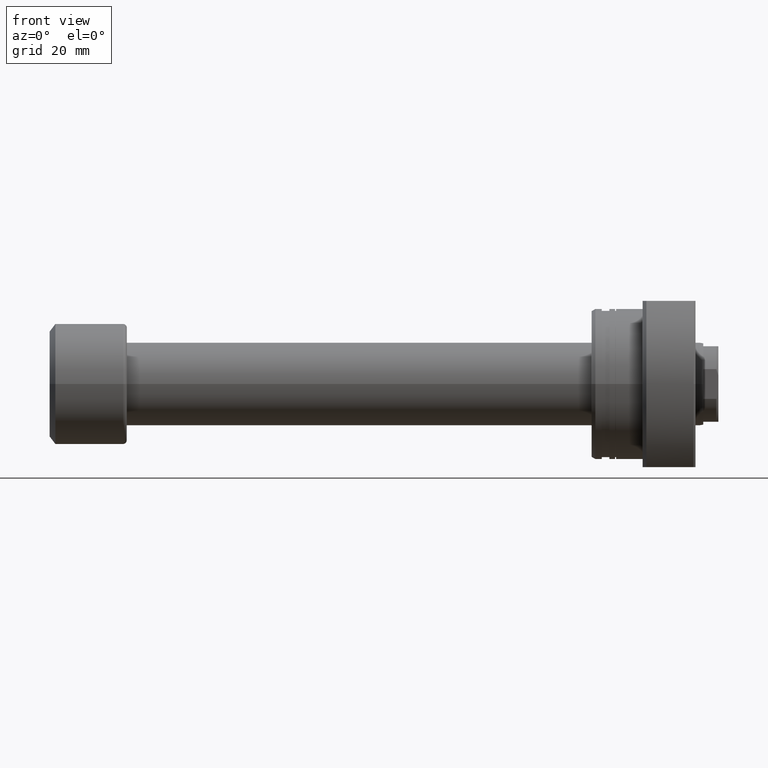
[diagram: clean part render]
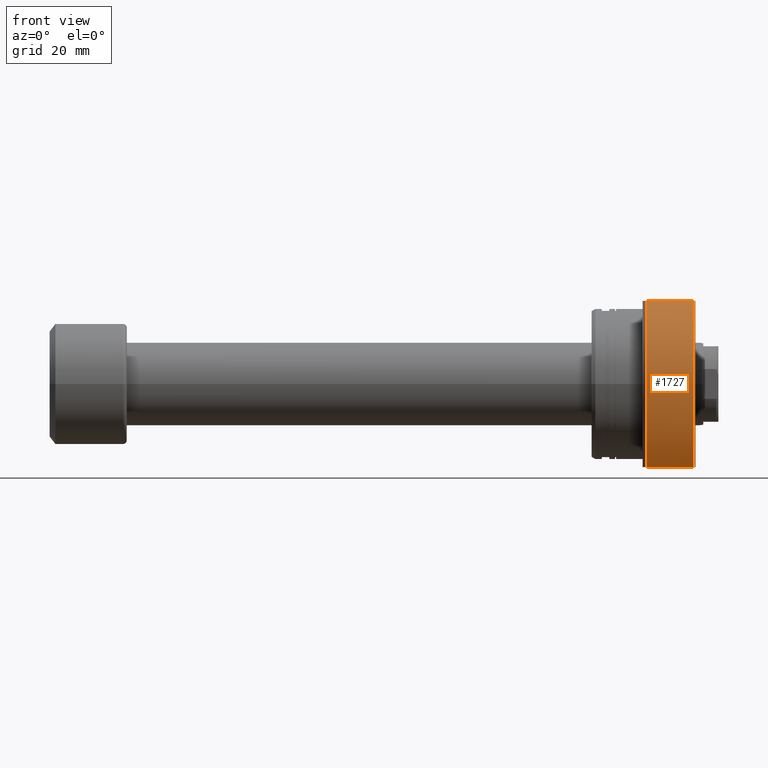
[diagram: same view with one face highlighted and labeled with its STEP entity id]
A machine part, front view. The second image highlights one B-rep face of the part: STEP entity #1727.
In plain terms, the highlighted cylindrical surface (partial cylindrical patch) has radius 32.5 mm, axis along (1, 0, 0).
Its self-contained STEP definition (entity closure, byte-faithful):
#6 = CARTESIAN_POINT ( 'NONE',  ( 27.00000000000008527, 3.607141481124941789E-16, 0.000000000000000000 ) ) ;
#11 = EDGE_CURVE ( 'NONE', #366, #958, #928, .T. ) ;
#60 = FACE_OUTER_BOUND ( 'NONE', #1616, .T. ) ;
#198 = CARTESIAN_POINT ( 'NONE',  ( 27.00000000000007105, -23.92174742781127605, -22.00000000000000355 ) ) ;
#311 = CARTESIAN_POINT ( 'NONE',  ( 27.50000000000000355, 3.673940397442059375E-16, 0.000000000000000000 ) ) ;
#347 = CARTESIAN_POINT ( 'NONE',  ( 14.49999999999999289, 1.937168573196720858E-16, 0.000000000000000000 ) ) ;
#366 = VERTEX_POINT ( 'NONE', #2637 ) ;
#368 = AXIS2_PLACEMENT_3D ( 'NONE', #6, #2747, #1007 ) ;
#572 = CARTESIAN_POINT ( 'NONE',  ( 14.49999999999999289, -23.92174742781091012, 22.00000000000000711 ) ) ;
#741 = AXIS2_PLACEMENT_3D ( 'NONE', #3019, #1975, #2763 ) ;
#750 = VERTEX_POINT ( 'NONE', #2858 ) ;
#819 = ORIENTED_EDGE ( 'NONE', *, *, #968, .F. ) ;
#827 = VECTOR ( 'NONE', #2179, 1000.000000000000000 ) ;
#870 = ORIENTED_EDGE ( 'NONE', *, *, #3033, .F. ) ;
#879 = AXIS2_PLACEMENT_3D ( 'NONE', #347, #2284, #3163 ) ;
#928 = LINE ( 'NONE', #1377, #1026 ) ;
#958 = VERTEX_POINT ( 'NONE', #198 ) ;
#968 = EDGE_CURVE ( 'NONE', #3175, #750, #2386, .T. ) ;
#1007 = DIRECTION ( 'NONE',  ( 0.000000000000000000, 1.000000000000000000, 0.000000000000000000 ) ) ;
#1026 = VECTOR ( 'NONE', #1437, 1000.000000000000000 ) ;
#1037 = DIRECTION ( 'NONE',  ( 1.000000000000000000, 1.335978326342566810E-17, -0.000000000000000000 ) ) ;
#1093 = ORIENTED_EDGE ( 'NONE', *, *, #1577, .F. ) ;
#1181 = CARTESIAN_POINT ( 'NONE',  ( -1.623701173514291440E-12, -23.92174742781049090, 22.00000000000000711 ) ) ;
#1369 = EDGE_CURVE ( 'NONE', #3175, #366, #2269, .T. ) ;
#1377 = CARTESIAN_POINT ( 'NONE',  ( -1.623701173514291440E-12, -23.92174742781049446, -22.00000000000000355 ) ) ;
#1437 = DIRECTION ( 'NONE',  ( 1.000000000000000000, -2.886466111666351885E-14, -0.000000000000000000 ) ) ;
#1577 = EDGE_CURVE ( 'NONE', #2005, #958, #1806, .T. ) ;
#1616 = EDGE_LOOP ( 'NONE', ( #819, #2995, #1883, #1093, #870 ) ) ;
#1702 = AXIS2_PLACEMENT_3D ( 'NONE', #311, #1037, #2331 ) ;
#1727 = ADVANCED_FACE ( 'NONE', ( #60 ), #2778, .T. ) ;
#1806 = CIRCLE ( 'NONE', #368, 32.49999999999991473 ) ;
#1883 = ORIENTED_EDGE ( 'NONE', *, *, #11, .T. ) ;
#1975 = DIRECTION ( 'NONE',  ( 1.000000000000000000, 1.335978326342566810E-17, -0.000000000000000000 ) ) ;
#2005 = VERTEX_POINT ( 'NONE', #2155 ) ;
#2123 = CIRCLE ( 'NONE', #741, 32.49999999999991473 ) ;
#2155 = CARTESIAN_POINT ( 'NONE',  ( 27.00000000000008527, -32.49999999999991473, 0.000000000000000000 ) ) ;
#2179 = DIRECTION ( 'NONE',  ( 1.000000000000000000, -2.886466111666351885E-14, -0.000000000000000000 ) ) ;
#2269 = CIRCLE ( 'NONE', #879, 32.49999999999991473 ) ;
#2284 = DIRECTION ( 'NONE',  ( 1.000000000000000000, 1.335978326342566810E-17, -0.000000000000000000 ) ) ;
#2331 = DIRECTION ( 'NONE',  ( 0.000000000000000000, 1.000000000000000000, 0.000000000000000000 ) ) ;
#2386 = LINE ( 'NONE', #1181, #827 ) ;
#2637 = CARTESIAN_POINT ( 'NONE',  ( 14.49999999999999289, -23.92174742781091368, -22.00000000000000355 ) ) ;
#2747 = DIRECTION ( 'NONE',  ( 1.000000000000000000, 1.335978326342566810E-17, -0.000000000000000000 ) ) ;
#2763 = DIRECTION ( 'NONE',  ( 0.000000000000000000, 1.000000000000000000, 0.000000000000000000 ) ) ;
#2778 = CYLINDRICAL_SURFACE ( 'NONE', #1702, 32.49999999999991473 ) ;
#2858 = CARTESIAN_POINT ( 'NONE',  ( 27.00000000000007105, -23.92174742781127250, 22.00000000000000711 ) ) ;
#2995 = ORIENTED_EDGE ( 'NONE', *, *, #1369, .T. ) ;
#3019 = CARTESIAN_POINT ( 'NONE',  ( 27.00000000000008527, 3.607141481124941789E-16, 0.000000000000000000 ) ) ;
#3033 = EDGE_CURVE ( 'NONE', #750, #2005, #2123, .T. ) ;
#3163 = DIRECTION ( 'NONE',  ( 0.000000000000000000, 1.000000000000000000, 0.000000000000000000 ) ) ;
#3175 = VERTEX_POINT ( 'NONE', #572 ) ;